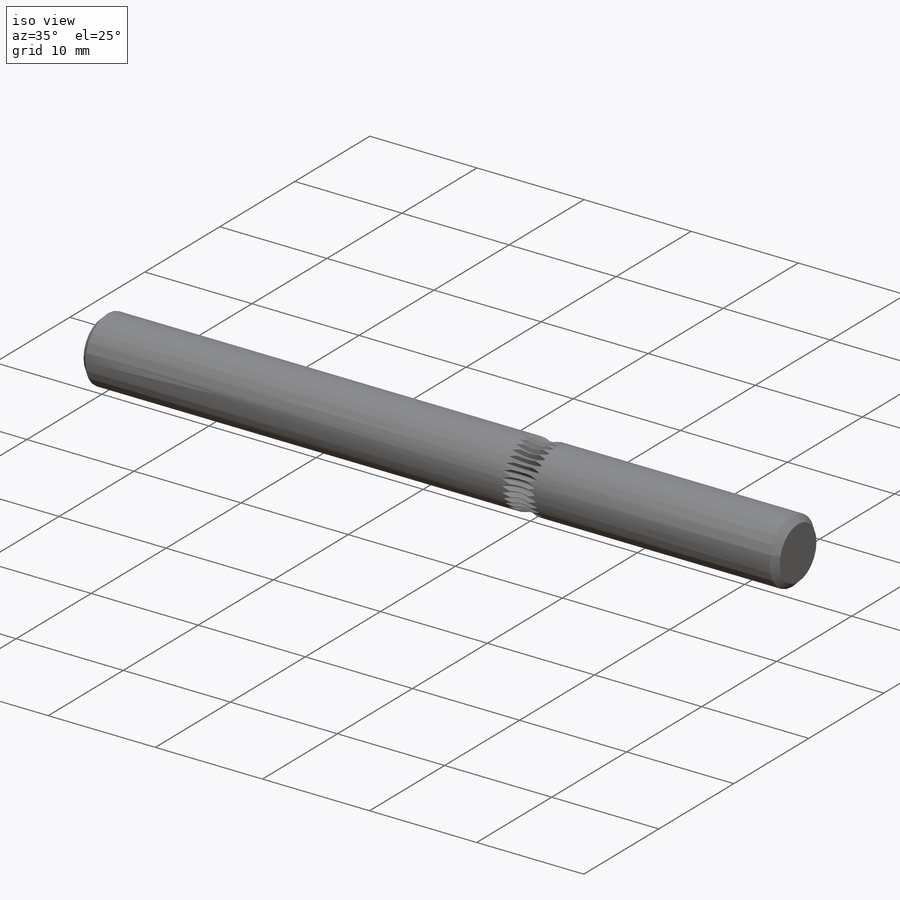
[diagram: iso view]
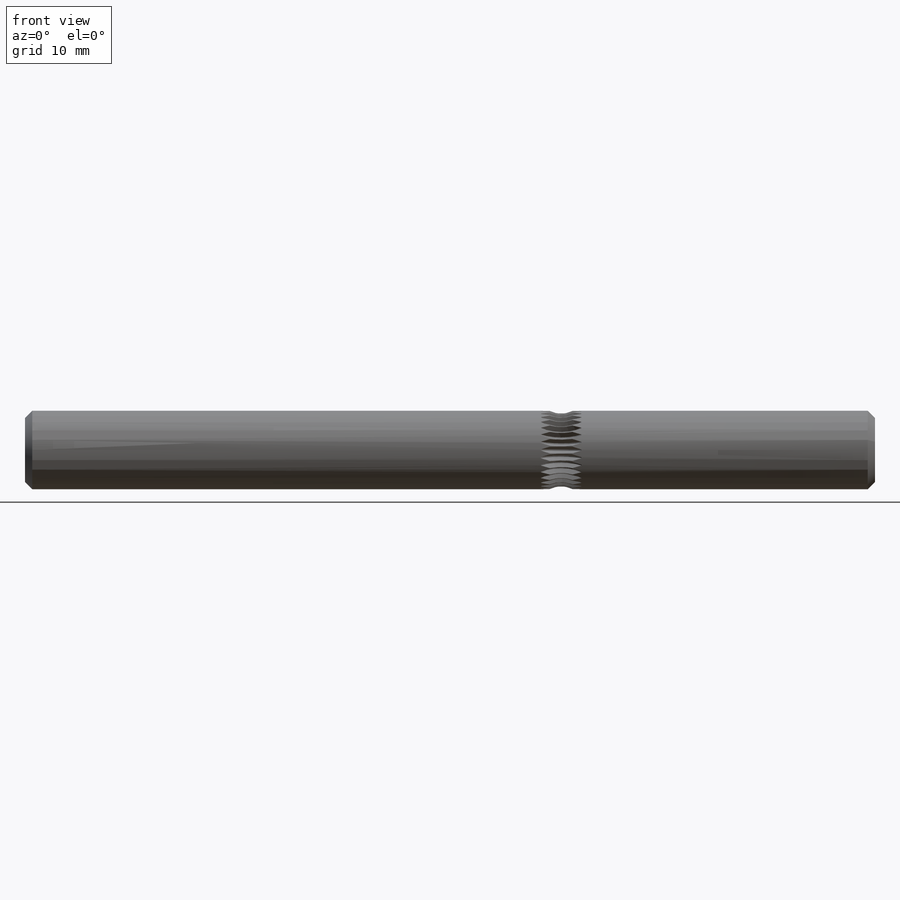
[diagram: front view]
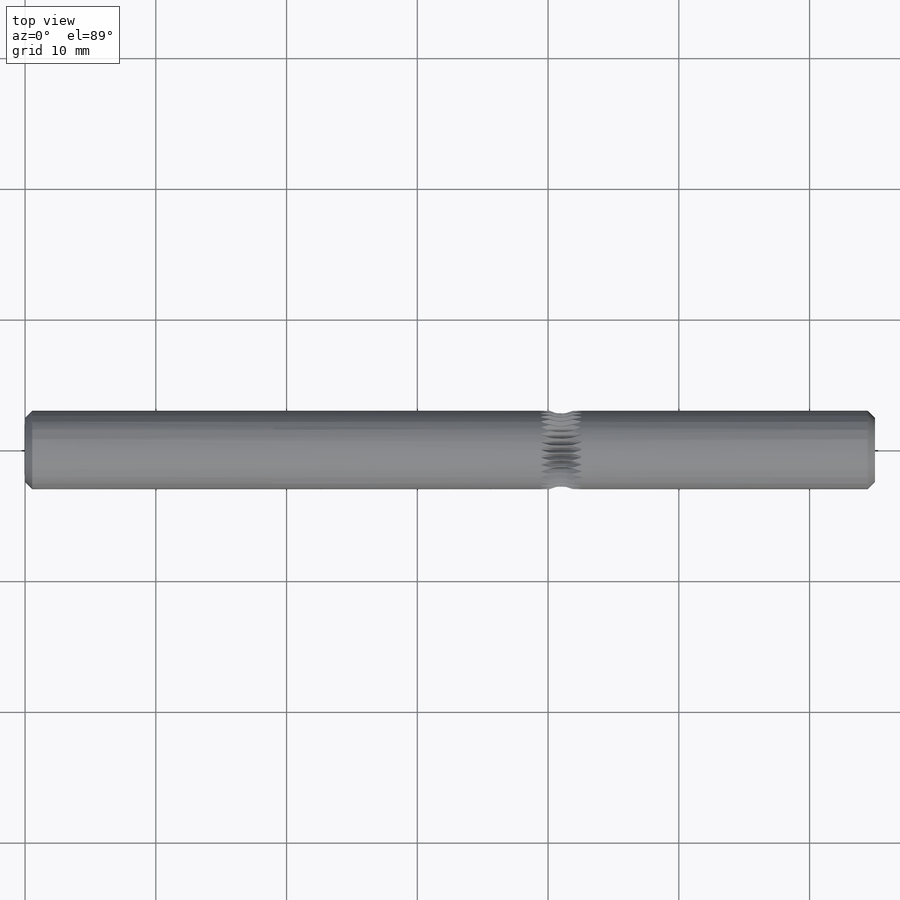
[diagram: top view]
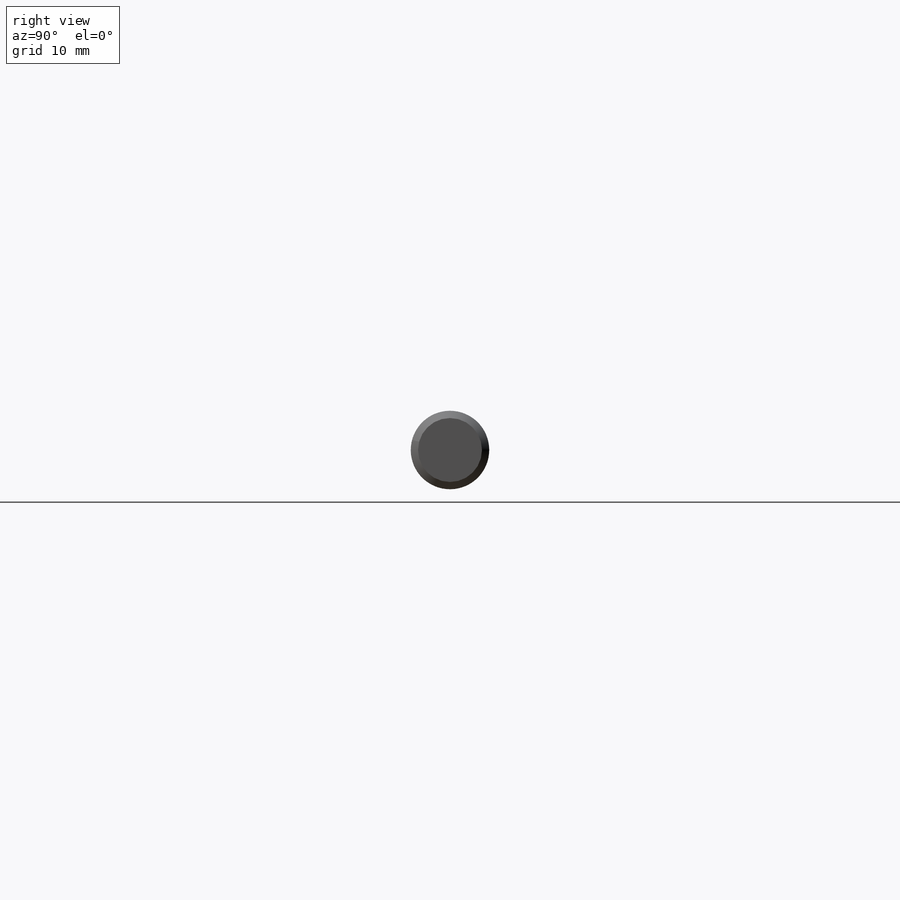
[diagram: right view]
SOLIDWORKS PART (.sldprt)
format: sldprt  version: not decoded by parser v0  size: 697,856 bytes
history: native  units: mm
features: sketch x7, plane x6, thread x2, helix x2, cut_revolve x2, sweep x2, material x1, revolve x1, pattern_circular x1, chamfer x1 (+11 scaffold rows collapsed)
feature tree (36):
  scaffold x11  (default folders/planes/origin — collapsed)
  material  "Material <not specified>"
  plane  "Plane1"
  plane  "Plane2"
  plane  "Plane3"
  plane  "Plane4"  Offset=41mm
  sketch  "BodySke"  dims[c1.Length=50.0mm c1.D1=88.646mm c1.Body_ch_ang=45.0deg c1.Diameter=6.0mm c1.Minor_dia=4.891mm c1.Advance=1.0mm c1.Thread_nom=18.0mm c1.Thread_lim=74.0918mm c2.D1=65.0mm]
  revolve  "BaseBody"  [1 undecoded]
  thread  "Cosmetic Thread1"  Diameter=19mm  [1 undecoded]
  thread  "Cosmetic Thread2"  Diameter=12mm  [1 undecoded]
  sketch  "Sketch6"  dims[c1.D1=0.0875mm c1.D2=0.35mm c1.D3=~0.625966mm c2.D3=60.0deg c2.D4=2.0mm c2.D5=4.8mm c2.D6=0.175mm c3.D4=0.379mm c3.D6=2.0mm c3.ConfigurationName=0.0mm c3.CopiedFlag=0.0 c3.PartNumberID=0.0mm c4.ConfigurationName=0.0mm c4.CopiedFlag=0.0mm]
  plane  "Plane5"  Offset=14.5mm
  plane  "Plane6"  Offset=12mm
  sketch  "Sketch7"
  helix  "Helix/Spiral1"  Pitch=18mm
  sketch  "ThdSchSke"  dims[c1.Thread_minor=~1.03886mm c1.Diameter=~1.413535mm c1.Start=~0.988134mm c1.D4=~4.446753mm c1.Vee=60.0deg c2.Thread_minor=~1.03886mm c2.Start=~2.540025mm c2.D1=~0.108159mm c2.D2=~0.108159mm c3.D1=~0.216319mm c3.SideAngle=55.0deg c3.D2=~0.216319mm c3.VeeAngle=70.0deg c3.Thread_minor=4.891mm c3.Overcut=7.5mm c3.Diameter=6.0mm c3.D6=~8.326268mm c4.D1=~8.326268mm c5.D1=90.0deg c5.Start=63.5mm c6.Start=140.4874mm c7.Start=14.5mm c7.D1=12.0mm]
  cut_revolve  "Cut-Revolve1"  Angle=360deg
  pattern_circular  "CirPattern1"  Count=32 Angle=7.5deg
  sweep  "Cut-Sweep1"
  sketch  "Sketch8"  dims[c1.D1=12.0mm c1.D2=~75.646095mm c2.D2=55.0deg c2.D3=0.5545mm c3.D3=70.0deg c3.D4=4.891mm c3.D5=6.0mm c3.D6=7.5mm]
  sketch  "Sketch9"
  helix  "Helix/Spiral2"  Pitch=12.857143mm
  sweep  "Cut-Sweep2"
  sketch  "Sketch10"  dims[c1.D1=~3.371585mm c1.D2=4.0mm c2.D1=4.8mm]
  cut_revolve  "Cut-Revolve2"  Angle=360deg
  chamfer  "Chamfer1"  Distance=0.5545mm Angle=45deg
decode coverage: 13 of 18 modeling features carry decoded parameters
note: ~ marks probable driven/reference dimensions
note: 3 parameter values undecoded
note: suppression state not decoded; provenance and decode notes live in map.json
